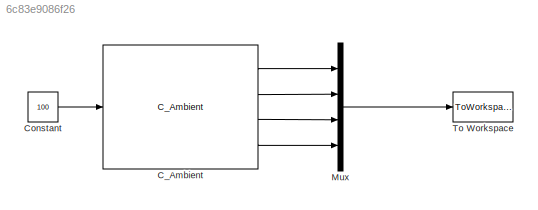
MODEL slx_6c83e9086f26
KIND model
CONFIG AbsTol = auto
CONFIG EnableMultiTasking = on
CONFIG FixedStep = auto
CONFIG MaxStep = auto
CONFIG MinStep = auto
CONFIG RelTol = 1e-3
CONFIG SampleTimeConstraint = Unconstrained
CONFIG Solver = ode45
CONFIG SolverName = ode45
CONFIG StartTime = 0.0
CONFIG StopTime = 10.0
BLOCK [Reference] C_Ambient  REF=Lib_TurboC_Ambient_TMATSC/C_Ambient
  Ports = [1, 4]
  SourceBlock = Lib_TurboC_Ambient_TMATSC/C_Ambient
  SourceType = T-MATS: Ambient Library Block, cantera
BLOCK [Constant] Constant
  Value = 100
BLOCK [Mux] Mux
  DisplayOption = bar
  Ports = [4, 1]
BLOCK [ToWorkspace] To Workspace
  MaxDataPoints = inf
  Ports = [1]
  SampleTime = -1
  SaveFormat = Timeseries
  VariableName = simout
LINE C_Ambient:1 -> Mux:1
LINE C_Ambient:2 -> Mux:2
LINE C_Ambient:3 -> Mux:3
LINE C_Ambient:4 -> Mux:4
LINE Constant:1 -> C_Ambient:1
LINE Mux:1 -> To Workspace:1
